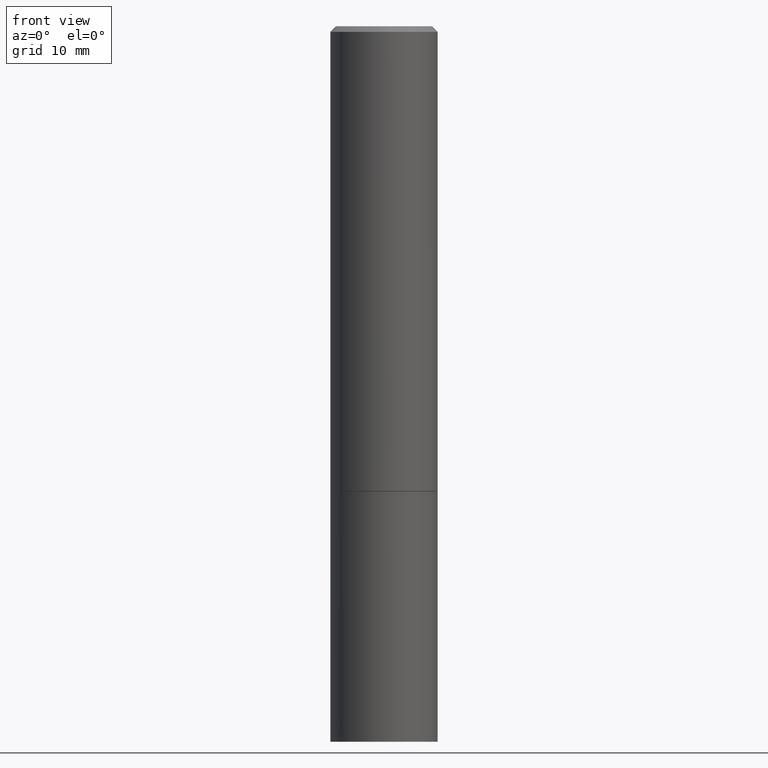
[diagram: clean part render]
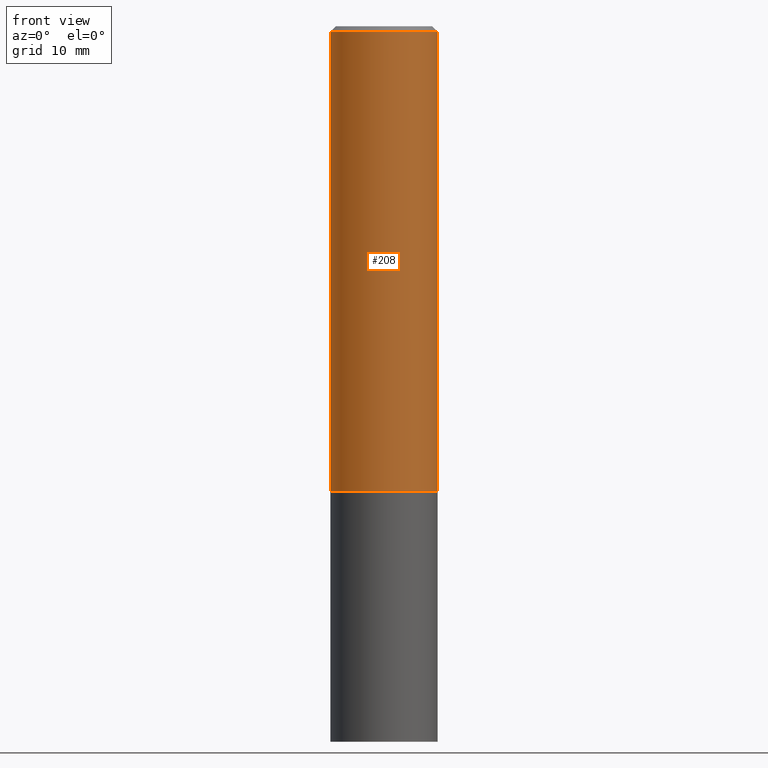
[diagram: same view with one face highlighted and labeled with its STEP entity id]
A machine part, front view. The second image highlights one B-rep face of the part: STEP entity #208.
In plain terms, the highlighted cylindrical surface (partial cylindrical patch) has radius 4.7625 mm, axis along (-0, 0, 1).
Its self-contained STEP definition (entity closure, byte-faithful):
#9 = VERTEX_POINT ( 'NONE', #129 ) ;
#22 = EDGE_LOOP ( 'NONE', ( #138, #362, #169, #290 ) ) ;
#36 = DIRECTION ( 'NONE',  ( -2.445468806185136597E-29, 3.491481338843145583E-15, 1.000000000000000000 ) ) ;
#45 = EDGE_CURVE ( 'NONE', #274, #87, #239, .T. ) ;
#56 = DIRECTION ( 'NONE',  ( 1.000000000000000000, -6.982962677686265133E-15, 0.000000000000000000 ) ) ;
#60 = CARTESIAN_POINT ( 'NONE',  ( 0.1875000000000000278, -6.979471196347444214E-15, -1.624000000000000110 ) ) ;
#63 = CARTESIAN_POINT ( 'NONE',  ( 3.971441341244662488E-29, -5.670165694281269206E-15, -1.624000000000000110 ) ) ;
#66 = CYLINDRICAL_SURFACE ( 'NONE', #299, 0.1874999999999999167 ) ;
#71 = VECTOR ( 'NONE', #166, 39.37007874015748143 ) ;
#72 = EDGE_CURVE ( 'NONE', #9, #274, #168, .T. ) ;
#75 = CARTESIAN_POINT ( 'NONE',  ( 4.890937612370283668E-31, -6.982962677686305168E-17, -0.02000000000000004205 ) ) ;
#81 = LINE ( 'NONE', #252, #71 ) ;
#85 = CIRCLE ( 'NONE', #250, 0.1875000000000000278 ) ;
#87 = VERTEX_POINT ( 'NONE', #233 ) ;
#92 = CARTESIAN_POINT ( 'NONE',  ( 0.000000000000000000, 0.000000000000000000, 0.000000000000000000 ) ) ;
#105 = EDGE_CURVE ( 'NONE', #9, #167, #85, .T. ) ;
#109 = EDGE_CURVE ( 'NONE', #167, #87, #81, .T. ) ;
#110 = DIRECTION ( 'NONE',  ( 1.000000000000000000, -6.982962677686266711E-15, 0.000000000000000000 ) ) ;
#129 = CARTESIAN_POINT ( 'NONE',  ( -0.1874999999999999722, -1.537730030978877023E-15, -1.624000000000000110 ) ) ;
#138 = ORIENTED_EDGE ( 'NONE', *, *, #72, .F. ) ;
#146 = DIRECTION ( 'NONE',  ( 1.000000000000000000, -6.982962677686265922E-15, 4.876176775795935793E-29 ) ) ;
#166 = DIRECTION ( 'NONE',  ( -2.445468806185136877E-29, 3.491481338843145188E-15, 1.000000000000000000 ) ) ;
#167 = VERTEX_POINT ( 'NONE', #60 ) ;
#168 = LINE ( 'NONE', #283, #312 ) ;
#169 = ORIENTED_EDGE ( 'NONE', *, *, #109, .T. ) ;
#175 = CARTESIAN_POINT ( 'NONE',  ( -0.1874999999999997780, 1.239475875289310330E-15, -0.02000000000000004205 ) ) ;
#201 = DIRECTION ( 'NONE',  ( -2.445468806185136877E-29, 3.491481338843145188E-15, 1.000000000000000000 ) ) ;
#208 = ADVANCED_FACE ( 'NONE', ( #356 ), #66, .T. ) ;
#233 = CARTESIAN_POINT ( 'NONE',  ( 0.1874999999999997780, -1.356173001359023691E-15, -0.02000000000000004205 ) ) ;
#239 = CIRCLE ( 'NONE', #321, 0.1874999999999997780 ) ;
#250 = AXIS2_PLACEMENT_3D ( 'NONE', #63, #36, #110 ) ;
#252 = CARTESIAN_POINT ( 'NONE',  ( 0.1874999999999999167, -1.309305502066174219E-15, 9.142831454617375408E-30 ) ) ;
#274 = VERTEX_POINT ( 'NONE', #175 ) ;
#283 = CARTESIAN_POINT ( 'NONE',  ( -0.1874999999999999167, 1.332267629550187257E-15, -9.223003294227943787E-30 ) ) ;
#290 = ORIENTED_EDGE ( 'NONE', *, *, #45, .F. ) ;
#299 = AXIS2_PLACEMENT_3D ( 'NONE', #92, #355, #146 ) ;
#312 = VECTOR ( 'NONE', #201, 39.37007874015748143 ) ;
#321 = AXIS2_PLACEMENT_3D ( 'NONE', #75, #353, #56 ) ;
#353 = DIRECTION ( 'NONE',  ( -2.445468806185136597E-29, 3.491481338843145583E-15, 1.000000000000000000 ) ) ;
#355 = DIRECTION ( 'NONE',  ( -2.445468806185136597E-29, 3.491481338843145583E-15, 1.000000000000000000 ) ) ;
#356 = FACE_OUTER_BOUND ( 'NONE', #22, .T. ) ;
#362 = ORIENTED_EDGE ( 'NONE', *, *, #105, .T. ) ;